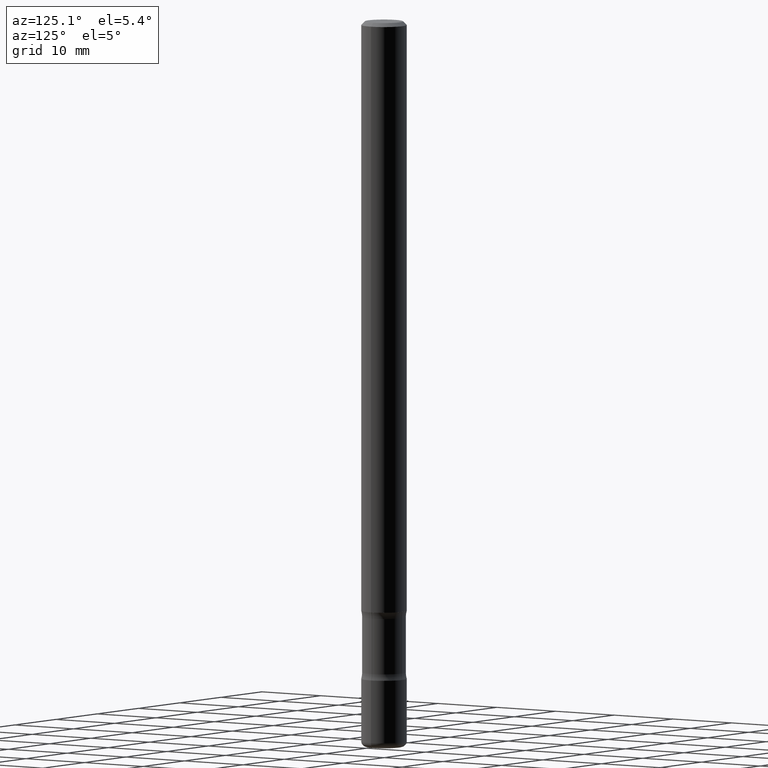
[diagram: clean part render]
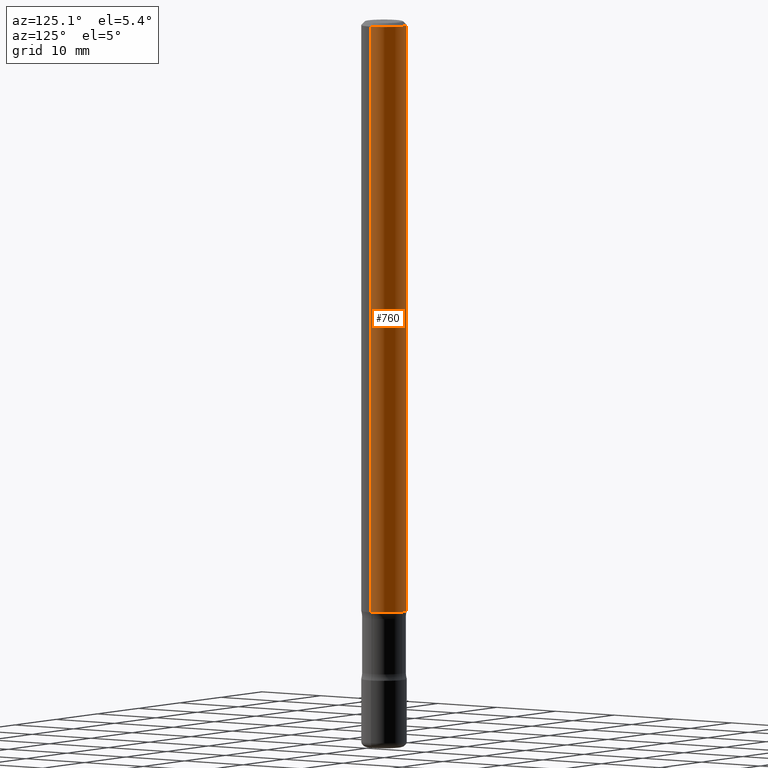
[diagram: same view with one face highlighted and labeled with its STEP entity id]
A machine part, auxiliary view. The second image highlights one B-rep face of the part: STEP entity #760.
In plain terms, the highlighted cylindrical surface (edge-blend (fillet) strip) has radius 3.175 mm, axis along (-0, 0, 1).
Its self-contained STEP definition (entity closure, byte-faithful):
#78 = ORIENTED_EDGE ( 'NONE', *, *, #647, .F. ) ;
#85 = CARTESIAN_POINT ( 'NONE',  ( 0.1250000000000000000, -1.222018468595100619E-14, -3.250000000000000000 ) ) ;
#88 = AXIS2_PLACEMENT_3D ( 'NONE', #237, #659, #414 ) ;
#104 = ORIENTED_EDGE ( 'NONE', *, *, #720, .T. ) ;
#105 = CARTESIAN_POINT ( 'NONE',  ( 7.947773620101693940E-29, -1.134731435124022443E-14, -3.250000000000000000 ) ) ;
#108 = VERTEX_POINT ( 'NONE', #339 ) ;
#120 = DIRECTION ( 'NONE',  ( -2.445468806185136597E-29, 3.491481338843145583E-15, 1.000000000000000000 ) ) ;
#136 = DIRECTION ( 'NONE',  ( -2.445468806185136877E-29, 3.491481338843145188E-15, 1.000000000000000000 ) ) ;
#151 = AXIS2_PLACEMENT_3D ( 'NONE', #105, #342, #739 ) ;
#160 = DIRECTION ( 'NONE',  ( -2.445468806185136877E-29, 3.491481338843145188E-15, 1.000000000000000000 ) ) ;
#180 = CYLINDRICAL_SURFACE ( 'NONE', #392, 0.1249999999999998473 ) ;
#190 = EDGE_CURVE ( 'NONE', #108, #415, #728, .T. ) ;
#208 = CARTESIAN_POINT ( 'NONE',  ( -0.1249999999999996947, 8.030407079339181671E-16, -0.02000000000000002470 ) ) ;
#237 = CARTESIAN_POINT ( 'NONE',  ( 4.890937612370279289E-31, -6.982962677686299005E-17, -0.02000000000000002470 ) ) ;
#245 = VERTEX_POINT ( 'NONE', #85 ) ;
#251 = CIRCLE ( 'NONE', #151, 0.1250000000000000000 ) ;
#252 = DIRECTION ( 'NONE',  ( 1.000000000000000000, -6.982962677686266711E-15, 4.876176775795935793E-29 ) ) ;
#300 = CARTESIAN_POINT ( 'NONE',  ( 0.1249999999999996947, -9.273918764983021797E-16, -0.02000000000000002470 ) ) ;
#339 = CARTESIAN_POINT ( 'NONE',  ( -0.1250000000000000278, -4.820393569308410741E-15, -3.250000000000000000 ) ) ;
#342 = DIRECTION ( 'NONE',  ( -2.445468806185136597E-29, 3.491481338843145583E-15, 1.000000000000000000 ) ) ;
#345 = CARTESIAN_POINT ( 'NONE',  ( -0.1249999999999998473, 8.881784197001241477E-16, -6.148668862818624520E-30 ) ) ;
#370 = FACE_OUTER_BOUND ( 'NONE', #484, .T. ) ;
#392 = AXIS2_PLACEMENT_3D ( 'NONE', #571, #120, #252 ) ;
#414 = DIRECTION ( 'NONE',  ( 1.000000000000000000, -6.982962677686266711E-15, 0.000000000000000000 ) ) ;
#415 = VERTEX_POINT ( 'NONE', #208 ) ;
#427 = EDGE_CURVE ( 'NONE', #245, #519, #518, .T. ) ;
#484 = EDGE_LOOP ( 'NONE', ( #104, #670, #78, #684 ) ) ;
#518 = LINE ( 'NONE', #576, #632 ) ;
#519 = VERTEX_POINT ( 'NONE', #300 ) ;
#571 = CARTESIAN_POINT ( 'NONE',  ( 0.000000000000000000, 0.000000000000000000, 0.000000000000000000 ) ) ;
#576 = CARTESIAN_POINT ( 'NONE',  ( 0.1249999999999998473, -8.728703347107822541E-16, 6.095220969744912034E-30 ) ) ;
#630 = VECTOR ( 'NONE', #160, 39.37007874015748143 ) ;
#632 = VECTOR ( 'NONE', #136, 39.37007874015748143 ) ;
#647 = EDGE_CURVE ( 'NONE', #519, #415, #769, .T. ) ;
#659 = DIRECTION ( 'NONE',  ( -2.445468806185136597E-29, 3.491481338843145583E-15, 1.000000000000000000 ) ) ;
#670 = ORIENTED_EDGE ( 'NONE', *, *, #190, .T. ) ;
#684 = ORIENTED_EDGE ( 'NONE', *, *, #427, .F. ) ;
#720 = EDGE_CURVE ( 'NONE', #245, #108, #251, .T. ) ;
#728 = LINE ( 'NONE', #345, #630 ) ;
#739 = DIRECTION ( 'NONE',  ( 1.000000000000000000, -6.982962677686262766E-15, 0.000000000000000000 ) ) ;
#760 = ADVANCED_FACE ( 'NONE', ( #370 ), #180, .T. ) ;
#769 = CIRCLE ( 'NONE', #88, 0.1249999999999996947 ) ;